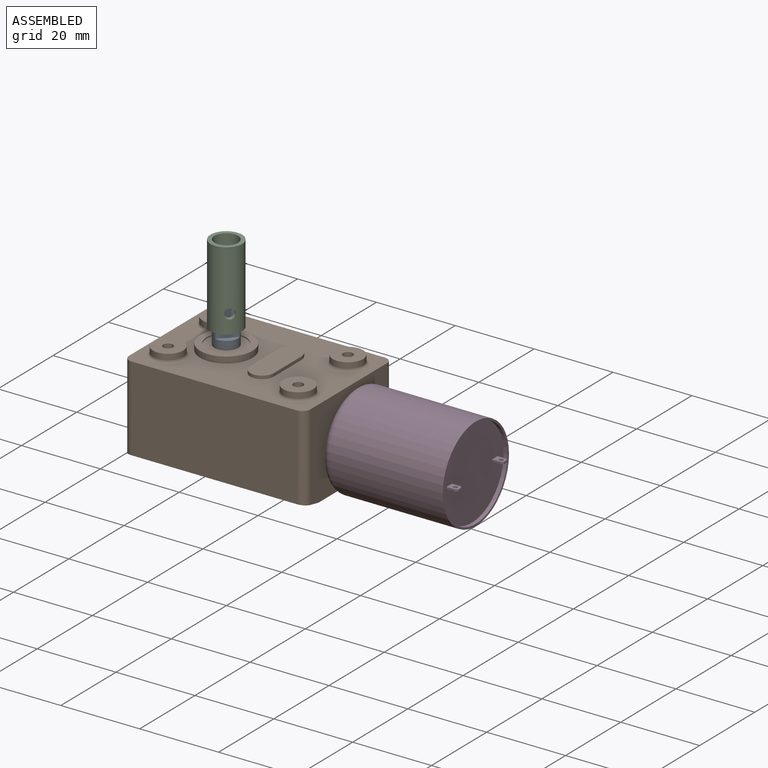
[diagram: assembled view]
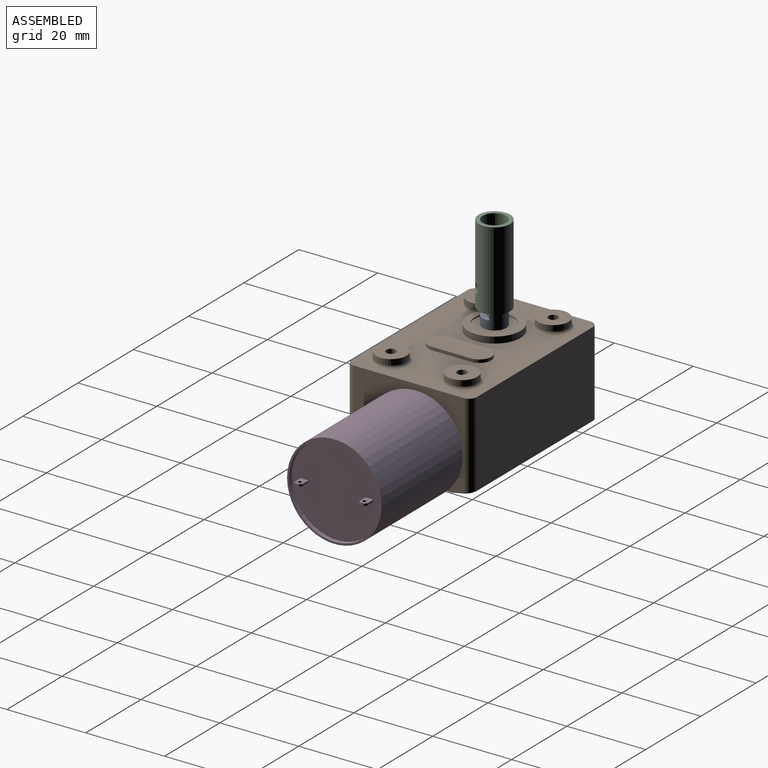
[diagram: assembled view, second angle]
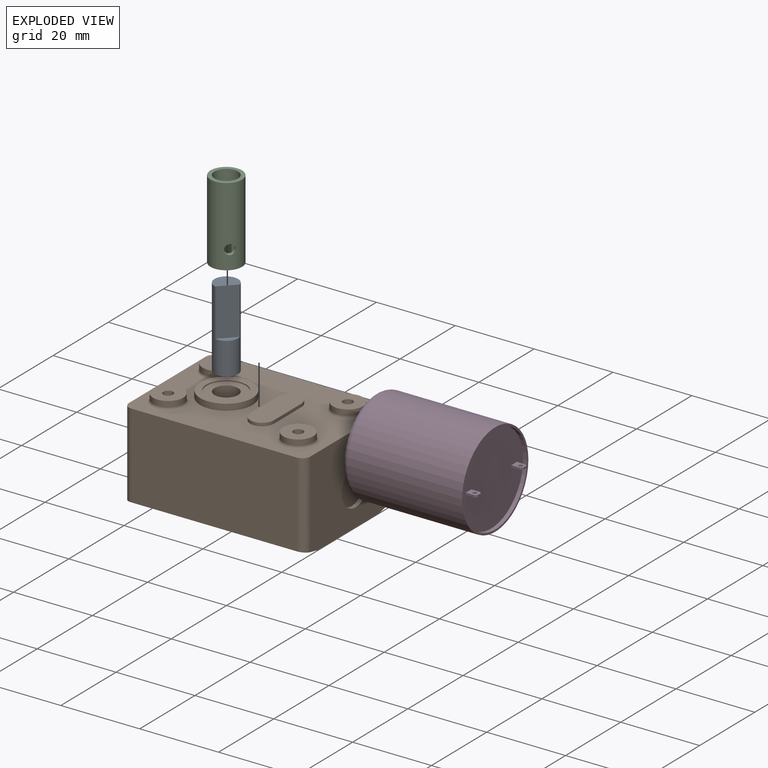
[diagram: exploded view]
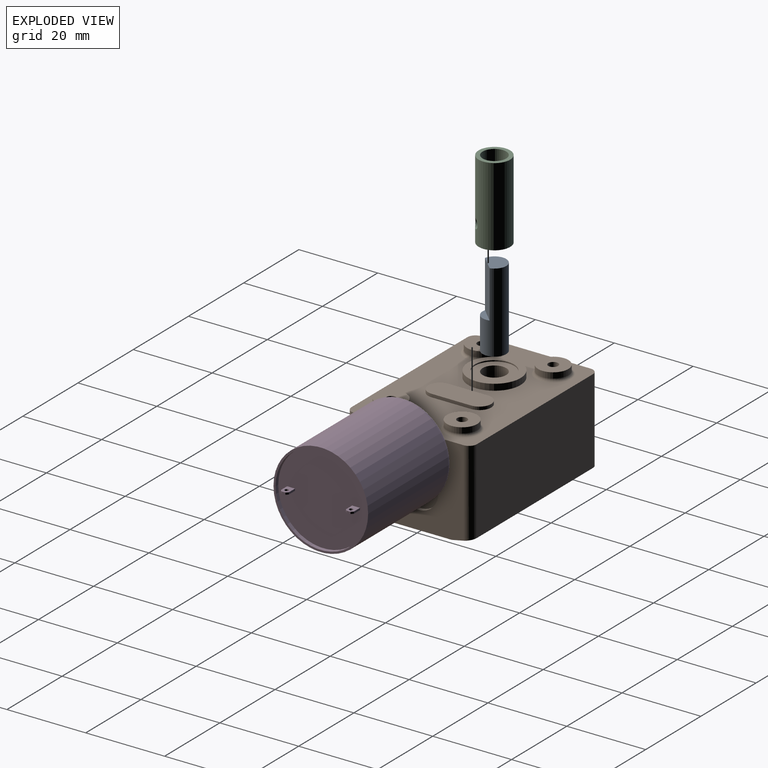
[diagram: exploded view, second angle]
ASSEMBLY  parts=4 mates=3
PART A: 5 faces, bbox 6x6x20.2 mm
  f0: plane 6x6mm, normal (0,0,-1), area 28.3mm2, adj f1
  f1: cylinder r=3mm len=20.2mm, axis (0,0,1), area 305.4mm2, adj f0,f2,f3,f4
  f2: plane 6x4.5mm, normal (0,0,1), area 22.8mm2, adj f1,f3
  f3: plane 12x5.19mm, normal (1,0,0), area 62.3mm2, adj f1,f2,f4
  f4: plane 5.19x1.5mm, normal (0,0,1), area 5.5mm2, adj f1,f3
PART B: 46 faces, bbox 46x31.8x24.6 mm
  f0: plane 46x31.8mm, normal (0,0,1), area 972mm2, adj f7,f8,f9,f10,f15,f16,f17,f18
  f1: cylinder r=1.25mm len=5mm, axis (0,0,1), area 39.3mm2, adj f2,f26
  f2: plane 2.5x2.5mm, normal (0,0,1), area 4.9mm2, adj f1
  f3: cylinder r=1.25mm len=5mm, axis (0,0,1), area 39.3mm2, adj f4,f24
  f4: plane 2.5x2.5mm, normal (0,0,1), area 4.9mm2, adj f3
  f5: cylinder r=1.25mm len=5mm, axis (0,0,1), area 39.3mm2, adj f6,f22
  f6: plane 2.5x2.5mm, normal (0,0,1), area 4.9mm2, adj f5
  f7: plane 42x21.5mm, normal (0,-1,0), area 903mm2, adj f0,f12,f15,f18
  f8: plane 27.8x22.5mm, normal (1,0,0), area 545.2mm2, adj f0,f11,f12,f14,f15,f16,f44
  f9: plane 42x21.5mm, normal (0,1,0), area 903mm2, adj f0,f14,f16,f17
  f10: plane 27.8x21.5mm, normal (-1,0,0), area 597.7mm2, adj f0,f13,f17,f18
  f11: plane 41x21.8mm, normal (0,0,-1), area 893.8mm2, adj f8,f12,f13,f14
  f12: plane 45.41x5mm, normal (0,-0.2,-0.98), area 220.5mm2, adj f7,f8,f11,f13,f15,f18
  f13: plane 30.63x5mm, normal (-0.2,0,-0.98), area 135.8mm2, adj f10,f11,f12,f14,f17,f18
  f14: plane 45.41x5mm, normal (0,0.2,-0.98), area 220.5mm2, adj f8,f9,f11,f13,f16,f17
  f15: cylinder r=2mm len=21.9mm, axis (0,0,1), area 68mm2, adj f0,f7,f8,f12
  f16: cylinder r=2mm len=21.9mm, axis (0,0,-1), area 68mm2, adj f0,f8,f9,f14
  f17: cylinder r=2mm len=21.62mm, axis (0,0,1), area 67.7mm2, adj f0,f9,f10,f13,f14
  f18: cylinder r=2mm len=21.62mm, axis (0,0,-1), area 67.7mm2, adj f0,f7,f10,f12,f13
  f19: cylinder r=3.85mm len=7.7mm, axis (0,0,-1), area 33.9mm2, adj f20,f27
  f20: plane 7.7x7.7mm, normal (0,0,1), area 41.7mm2, adj f19,f31
  f21: cylinder r=3.85mm len=7.7mm, axis (0,0,-1), area 33.9mm2, adj f22,f30
  f22: plane 7.7x7.7mm, normal (0,0,1), area 41.7mm2, adj f5,f21
  f23: cylinder r=3.85mm len=7.7mm, axis (0,0,-1), area 33.9mm2, adj f24,f29
  f24: plane 7.7x7.7mm, normal (0,0,1), area 41.7mm2, adj f3,f23
  f25: cylinder r=3.85mm len=7.7mm, axis (0,0,-1), area 33.9mm2, adj f26,f28
  f26: plane 7.7x7.7mm, normal (0,0,1), area 41.7mm2, adj f1,f25
  f27: torus R=4.55mm, axis (0,0,1), area 28.4mm2, adj f0,f19
  f28: torus R=4.55mm, axis (0,0,1), area 28.4mm2, adj f0,f25
  f29: torus R=4.55mm, axis (0,0,1), area 28.4mm2, adj f0,f23
  f30: torus R=4.55mm, axis (0,0,1), area 28.4mm2, adj f0,f21
  f31: cylinder r=1.25mm len=5mm, axis (0,0,1), area 39.3mm2, adj f20,f32
  f32: plane 2.5x2.5mm, normal (0,0,1), area 4.9mm2, adj f31
  f33: cylinder r=6.65mm len=13.3mm, axis (0,0,-1), area 66.9mm2, adj f0,f34
  f34: plane 13.3x13.3mm, normal (0,0,1), area 60.8mm2, adj f33,f35
  f35: cylinder r=4.99mm len=9.97mm, axis (0,0,1), area 9.4mm2, adj f34,f36
  f36: plane 9.97x9.97mm, normal (0,0,1), area 49.8mm2, adj f35,f37
  f37: cylinder r=3mm len=6mm, axis (0,0,1), area 113.1mm2, adj f36,f38
  f38: plane 6x6mm, normal (0,0,1), area 28.3mm2, adj f37
  f39: cylinder r=3mm len=6mm, axis (0,0,-1), area 7.5mm2, adj f0,f40,f42,f43
  f40: plane 10x0.8mm, normal (-1,0,0), area 8mm2, adj f0,f39,f41,f43
  f41: cylinder r=3mm len=6mm, axis (0,0,-1), area 7.5mm2, adj f0,f40,f42,f43
  f42: plane 10x0.8mm, normal (1,0,0), area 8mm2, adj f0,f39,f41,f43
  f43: plane 16x6mm, normal (0,0,1), area 88.3mm2, adj f39,f40,f41,f42
  f44: cylinder r=5mm len=10mm, axis (1,0,0), area 31.4mm2, adj f8,f45
  f45: plane 10x10mm, normal (1,0,0), area 78.5mm2, adj f44
PART C: 5 faces, bbox 8x8x20 mm
  f0: cylinder r=3mm len=20mm, axis (0,0,-1), area 372mm2, adj f2,f3,f4
  f1: cylinder r=4mm len=20mm, axis (0,0,-1), area 497.7mm2, adj f2,f3,f4
  f2: plane 8x8mm, normal (0,0,1), area 22mm2, adj f0,f1
  f3: plane 8x8mm, normal (0,0,-1), area 22mm2, adj f0,f1
  f4: cylinder r=1.25mm len=2.5mm, axis (-1,0,0), area 8.1mm2, adj f0,f1
PART D: 24 faces, bbox 33.3x26x26 mm
  f0: plane 23x23mm, normal (1,0,0), area 413.5mm2, adj f5,f6,f7,f8,f9,f11,f12,f13
  f1: cylinder r=12mm len=29mm, axis (-1,0,0), area 2186.5mm2, adj f2,f4
  f2: plane 24x24mm, normal (1,0,0), area 36.9mm2, adj f1,f5
  f3: plane 21x21mm, normal (-1,0,0), area 267.8mm2, adj f4,f22
  f4: torus R=10.5mm, axis (1,0,0), area 169.6mm2, adj f1,f3
  f5: cylinder r=11.5mm len=23mm, axis (1,0,0), area 72.3mm2, adj f0,f2
  f6: plane 2.75x2mm, normal (0,0,-1), area 4.6mm2, adj f0,f7,f9,f10,f18,f19,f21
  f7: plane 2.25x0.5mm, normal (0,1,0), area 1.1mm2, adj f0,f6,f8,f18
  f8: plane 2.75x2mm, normal (0,0,1), area 4.6mm2, adj f0,f7,f9,f10,f18,f19,f21
  f9: plane 2.25x0.5mm, normal (0,-1,0), area 1.1mm2, adj f0,f6,f8,f19
  f10: plane 1x0.5mm, normal (1,0,0), area 0.5mm2, adj f6,f8,f18,f19
  f11: plane 2.75x2mm, normal (0,0,-1), area 4.5mm2, adj f0,f12,f14,f15,f16,f17,f20
  f12: plane 2.25x0.5mm, normal (0,1,0), area 1.1mm2, adj f0,f11,f13,f16
  f13: plane 2.75x2mm, normal (0,0,1), area 4.5mm2, adj f0,f12,f14,f15,f16,f17,f20
  f14: plane 2.25x0.5mm, normal (0,-1,0), area 1.1mm2, adj f0,f11,f13,f17
  f15: plane 1x0.5mm, normal (1,0,0), area 0.5mm2, adj f11,f13,f16,f17
  f16: plane 0.5x0.5mm, normal (0.71,0.71,0), area 0.4mm2, adj f11,f12,f13,f15
  f17: plane 0.5x0.5mm, normal (0.71,-0.71,0), area 0.4mm2, adj f11,f13,f14,f15
  f18: plane 0.5x0.5mm, normal (0.71,0.71,0), area 0.4mm2, adj f6,f7,f8,f10
  f19: plane 0.5x0.5mm, normal (0.71,-0.71,0), area 0.4mm2, adj f6,f8,f9,f10
  f20: cylinder r=0.48mm len=0.95mm, axis (0,0,1), area 1.5mm2, adj f11,f13
  f21: cylinder r=0.47mm len=0.94mm, axis (0,0,1), area 1.5mm2, adj f6,f8
  f22: cylinder r=5mm len=10mm, axis (1,0,0), area 31.4mm2, adj f3,f23
  f23: plane 10x10mm, normal (-1,0,0), area 78.5mm2, adj f22
PLACE A rot(axis=(0,0,-1),44.4deg) t=(-2.3,-5.63,0)mm
PLACE B at identity fixed
PLACE C rot(axis=(0,0,-1),44.4deg) t=(-2.3,-5.63,1.9)mm
PLACE D at identity
MATE fastened D.f22 <-> B.f44  axis (-1,0,0) through (22,2.5,9.65)mm
MATE revolute A.f1 <-> B.f37  axis (0,0,1) through (-8.05,0,17.8)mm
MATE fastened C.f1 <-> A.f1  axis (0,0,-1) through (-8.05,0,27.9)mm
